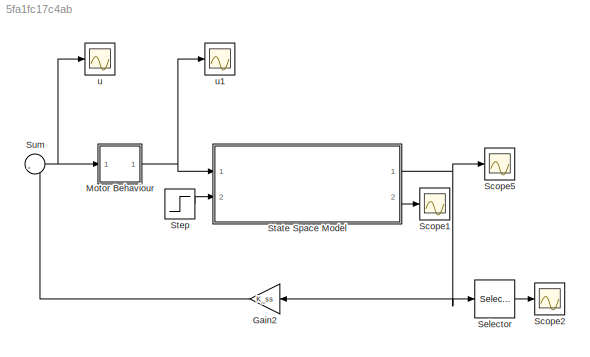
MODEL slx_5fa1fc17c4ab
KIND model
CONFIG AbsTol = auto
CONFIG EnableMultiTasking = off
CONFIG FixedStep = auto
CONFIG MaxStep = auto
CONFIG MinStep = auto
CONFIG RelTol = 1e-3
CONFIG SampleTimeConstraint = Unconstrained
CONFIG Solver = VariableStepAuto
CONFIG SolverName = VariableStepAuto
CONFIG StartTime = 0.0
CONFIG StopTime = 100
BLOCK [Gain] Gain2
  Gain = K_ss
  Multiplication = Matrix(K*u)
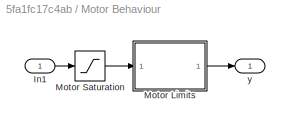
BLOCK [SubSystem] Motor Behaviour
  Ports = [1, 1]
  RequestExecContextInheritance = off
BLOCK [Inport] Motor Behaviour/In1
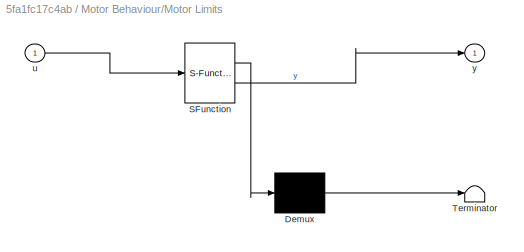
BLOCK [SubSystem] Motor Behaviour/Motor Limits
  ErrorFcn = Stateflow.Translate.translate
  PermitHierarchicalResolution = ExplicitOnly
  Ports = [1, 1]
  RequestExecContextInheritance = off
  SFBlockType = MATLAB Function
  TreatAsAtomicUnit = on
BLOCK [Demux] Motor Behaviour/Motor Limits/ Demux 
  Outputs = 1
  Ports = [1, 1]
BLOCK [S-Function] Motor Behaviour/Motor Limits/ SFunction 
  EnableBusSupport = on
  FunctionName = sf_sfun
  PortCounts = [1 2]
  Ports = [1, 2]
  SFcnIsStateOwnerBlock = off
  SFunctionDeploymentMode = off
  Tag = Stateflow S-Function 2
BLOCK [Terminator] Motor Behaviour/Motor Limits/ Terminator 
BLOCK [Inport] Motor Behaviour/Motor Limits/u
BLOCK [Outport] Motor Behaviour/Motor Limits/y
BLOCK [Saturate] Motor Behaviour/Motor Saturation
  LowerLimit = -10.5
  UpperLimit = 10.5
BLOCK [Outport] Motor Behaviour/y
BLOCK [Scope] Scope1
  Floating = off
  NumInputPorts = 1
  Ports = [1]
  ScopeSpecificationString = Simulink.scopes.TimeScopeBlockCfg('CurrentConfiguration', extmgr.ConfigurationSet(extmgr.Configuration('Core','General UI',true),extmgr.Configuration('Core','Source UI',true),extmgr.Configuration('Sources','WiredSimulink',true,'DataLoggingVariableName','ScopeData2'),extmgr.Configuration('Visuals','Time Domain',true,'SerializedDisplays',{struct('MinYLimReal','-0.17993','MaxYLimReal','0.36474','YLab...<+1456ch>
BLOCK [Scope] Scope2
  Floating = off
  NumInputPorts = 1
  Ports = [1]
  ScopeSpecificationString = Simulink.scopes.TimeScopeBlockCfg('CurrentConfiguration', extmgr.ConfigurationSet(extmgr.Configuration('Core','General UI',true),extmgr.Configuration('Core','Source UI',true),extmgr.Configuration('Sources','WiredSimulink',true,'DataLoggingVariableName','ScopeData2'),extmgr.Configuration('Visuals','Time Domain',true,'SerializedDisplays',{struct('MinYLimReal','-0.09954','MaxYLimReal','0.02324','YLab...<+1395ch>
BLOCK [Scope] Scope5
  Floating = off
  NumInputPorts = 1
  Ports = [1]
  ScopeSpecificationString = Simulink.scopes.TimeScopeBlockCfg('CurrentConfiguration', extmgr.ConfigurationSet(extmgr.Configuration('Core','General UI',true),extmgr.Configuration('Core','Source UI',true),extmgr.Configuration('Sources','WiredSimulink',true,'DataLoggingVariableName','ScopeData1'),extmgr.Configuration('Visuals','Time Domain',true,'SerializedDisplays',{struct('MinYLimReal','-0.17993','MaxYLimReal','0.36474','YLab...<+1456ch>
BLOCK [Selector] Selector
  IndexOptions = Index vector (dialog)
  Indices = 2
  InputPortWidth = 3
  OutputSizes = 1
  Ports = [1, 1]
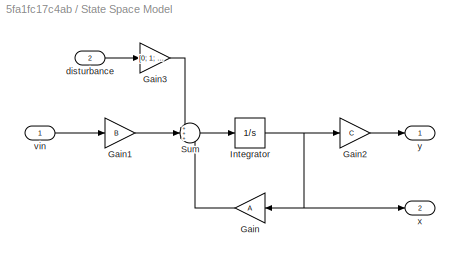
BLOCK [SubSystem] State Space Model
  Ports = [2, 2]
  RequestExecContextInheritance = off
BLOCK [Gain] State Space Model/Gain
  Gain = A
  Multiplication = Matrix(K*u)
BLOCK [Gain] State Space Model/Gain1
  Gain = B
  Multiplication = Matrix(K*u)
BLOCK [Gain] State Space Model/Gain2
  Gain = C
  Multiplication = Matrix(K*u)
BLOCK [Gain] State Space Model/Gain3
  Gain = [0; 1; 0]
  Multiplication = Matrix(K*u)
BLOCK [Integrator] State Space Model/Integrator
  InitialCondition = x0
  Ports = [1, 1]
BLOCK [Sum] State Space Model/Sum
  Inputs = +++
  Ports = [3, 1]
BLOCK [Inport] State Space Model/disturbance
  Port = 2
BLOCK [Inport] State Space Model/vin
BLOCK [Outport] State Space Model/x
  Port = 2
BLOCK [Outport] State Space Model/y
BLOCK [Step] Step
  After = 0
  SampleTime = 0
BLOCK [Sum] Sum
  Inputs = |-
  Ports = [1, 1]
BLOCK [Scope] u
  Floating = off
  NumInputPorts = 1
  Ports = [1]
  ScopeSpecificationString = Simulink.scopes.TimeScopeBlockCfg('CurrentConfiguration', extmgr.ConfigurationSet(extmgr.Configuration('Core','General UI',true),extmgr.Configuration('Core','Source UI',true),extmgr.Configuration('Sources','WiredSimulink',true),extmgr.Configuration('Visuals','Time Domain',true,'SerializedDisplays',{struct('MinYLimReal','-14.09368','MaxYLimReal','1.85689','YLabelReal','','MinYLimMag','0.00000','Max...<+1355ch>
BLOCK [Scope] u1
  Floating = off
  NumInputPorts = 1
  Ports = [1]
  ScopeSpecificationString = Simulink.scopes.TimeScopeBlockCfg('CurrentConfiguration', extmgr.ConfigurationSet(extmgr.Configuration('Core','General UI',true),extmgr.Configuration('Core','Source UI',true),extmgr.Configuration('Sources','WiredSimulink',true,'DataLoggingVariableName','ScopeData1'),extmgr.Configuration('Visuals','Time Domain',true,'SerializedDisplays',{struct('MinYLimReal','-12.25','MaxYLimReal','5.25','YLabelRea...<+1388ch>
LINE Gain2:1 -> Sum:1
LINE Motor Behaviour/In1:1 -> Motor Behaviour/Motor Saturation:1
LINE Motor Behaviour/Motor Limits:1 -> Motor Behaviour/y:1
LINE Motor Behaviour/Motor Saturation:1 -> Motor Behaviour/Motor Limits:1
NET Motor Behaviour:1 -> State Space Model:1, u1:1
LINE Selector:1 -> Scope2:1
LINE State Space Model/Gain1:1 -> State Space Model/Sum:2
LINE State Space Model/Gain2:1 -> State Space Model/y:1
LINE State Space Model/Gain3:1 -> State Space Model/Sum:1
LINE State Space Model/Gain:1 -> State Space Model/Sum:3
NET State Space Model/Integrator:1 -> State Space Model/Gain2:1, State Space Model/Gain:1, State Space Model/x:1
LINE State Space Model/Sum:1 -> State Space Model/Integrator:1
LINE State Space Model/disturbance:1 -> State Space Model/Gain3:1
LINE State Space Model/vin:1 -> State Space Model/Gain1:1
NET State Space Model:1 -> Gain2:1, Scope5:1, Selector:1
LINE State Space Model:2 -> Scope1:1
LINE Step:1 -> State Space Model:2
NET Sum:1 -> Motor Behaviour:1, u:1
note: NET lines group one-source signal fan-out (src -> all destinations, sorted); 1:1 wires keep LINE
CHART Motor Behaviour/Motor Limits states=1 transitions=1
  STATE_LABEL 'eML_blk_kernel()'
  STATE_LABEL 'SCRIPT:\nfunction y = fcn(u)\ndeadzone = 3.5;\n\nif sign(u) == 0\n    y = 0;\nelseif u*sign(u)<deadzone\n    y = deadzone*sign(u);\nelse\n    y = u;\nend\n'
CHART  states=0 transitions=0
